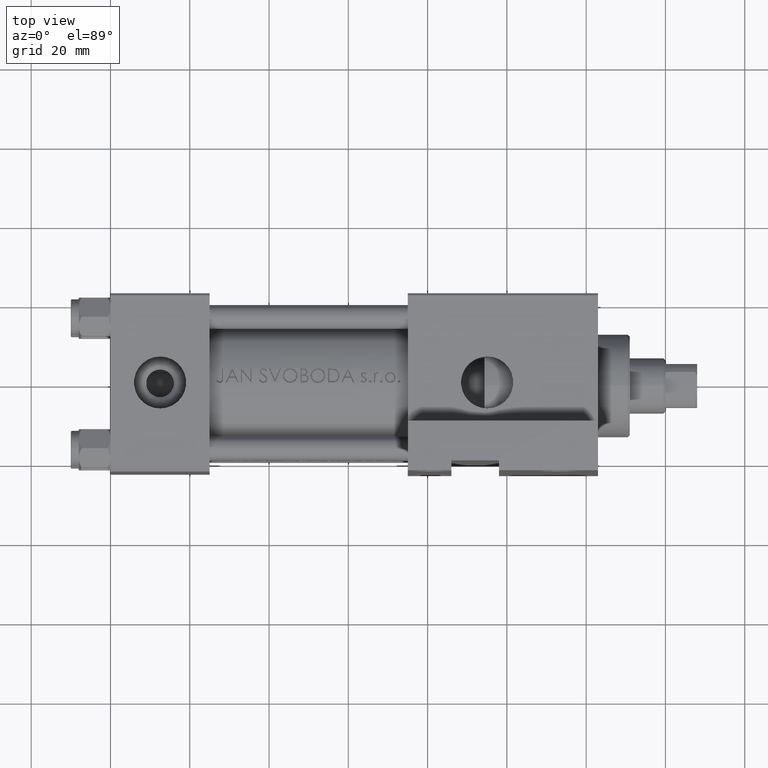
[diagram: clean part render]
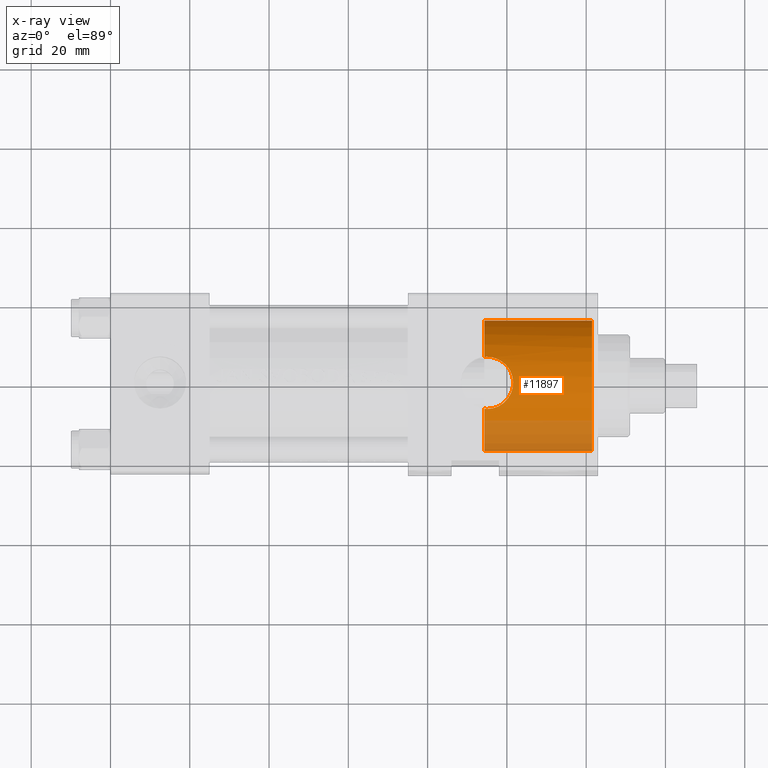
[diagram: x-ray — body ghosted, one internal face saturated and labeled with its STEP entity id]
A machine part, top view, then the same camera in x-ray: the body is ghosted and one INTERNAL B-rep face — a face not visible from any outside direction — is saturated and labeled: STEP entity #11897.
In plain terms, the highlighted cylindrical surface (partial cylindrical patch) has radius 16.5 mm, axis along (1, 0, 0).
Its self-contained STEP definition (entity closure, byte-faithful):
#61 = CARTESIAN_POINT ( 'NONE',  ( 95.00000000000001421, -15.33895693976614361, -6.580000000000001847 ) ) ;
#223 = EDGE_CURVE ( 'NONE', #13572, #2960, #27439, .T. ) ;
#235 = CARTESIAN_POINT ( 'NONE',  ( 94.76743154227646926, -15.33895693976614361, -6.580000000000001847 ) ) ;
#297 = CARTESIAN_POINT ( 'NONE',  ( 97.13848513234270854, -15.47127985552786811, -6.237636073092438060 ) ) ;
#2960 = VERTEX_POINT ( 'NONE', #36220 ) ;
#3669 = CARTESIAN_POINT ( 'NONE',  ( 101.5709677562896331, -16.50116693238018684, -0.4077177105366182608 ) ) ;
#3707 = AXIS2_PLACEMENT_3D ( 'NONE', #43122, #10062, #24773 ) ;
#3908 = CARTESIAN_POINT ( 'NONE',  ( 97.92778374562576005, -15.59286003707434176, -5.896700753237611892 ) ) ;
#4149 = CARTESIAN_POINT ( 'NONE',  ( 95.00000000000004263, -14.90381159301204583, 6.580000000000008953 ) ) ;
#4213 = DIRECTION ( 'NONE',  ( 1.000000000000000000, -0.000000000000000000, -0.000000000000000000 ) ) ;
#4372 = CARTESIAN_POINT ( 'NONE',  ( 99.35749147708605733, -15.89197804239858591, -4.948973207531823348 ) ) ;
#4440 = AXIS2_PLACEMENT_3D ( 'NONE', #23473, #27574, #9235 ) ;
#5342 = EDGE_CURVE ( 'NONE', #41602, #25103, #33946, .T. ) ;
#5819 = EDGE_LOOP ( 'NONE', ( #35603, #29239, #27670, #33240, #16023, #25145, #25515, #15714 ) ) ;
#7062 = CARTESIAN_POINT ( 'NONE',  ( 98.30013566022965676, -15.28950433861736968, 5.708499388656722573 ) ) ;
#7444 = CARTESIAN_POINT ( 'NONE',  ( 121.5000000000000142, 0.000000000000000000, -16.99999999999999645 ) ) ;
#7526 = CARTESIAN_POINT ( 'NONE',  ( 101.3588356637530268, -16.35197207035328759, 1.746060943800894938 ) ) ;
#7767 = CARTESIAN_POINT ( 'NONE',  ( 100.9152909999797316, -16.32739268020748113, -2.914679961596275515 ) ) ;
#8003 = CARTESIAN_POINT ( 'NONE',  ( 95.43706083123190353, -14.90381159301204406, 6.580000000000003624 ) ) ;
#8504 = CARTESIAN_POINT ( 'NONE',  ( 94.76740894158342599, -14.90381159301203695, 6.580000000000004512 ) ) ;
#9235 = DIRECTION ( 'NONE',  ( 0.000000000000000000, 0.000000000000000000, 1.000000000000000000 ) ) ;
#10062 = DIRECTION ( 'NONE',  ( 1.000000000000000000, 0.000000000000000000, 0.000000000000000000 ) ) ;
#11151 = CARTESIAN_POINT ( 'NONE',  ( 95.86560631136352129, -15.35602623177227244, -6.537463815344781715 ) ) ;
#11380 = CARTESIAN_POINT ( 'NONE',  ( 95.43411291541292485, -15.33895693976614361, -6.580000000000001847 ) ) ;
#11862 = CARTESIAN_POINT ( 'NONE',  ( 100.8954531384124778, -16.13952493269048460, 2.953520058509838009 ) ) ;
#11888 = CARTESIAN_POINT ( 'NONE',  ( 95.00000000000004263, -14.90381159301204583, 6.580000000000008953 ) ) ;
#11897 = ADVANCED_FACE ( 'NONE', ( #36751 ), #18174, .F. ) ;
#11978 = EDGE_CURVE ( 'NONE', #2960, #20697, #17901, .T. ) ;
#13452 = CARTESIAN_POINT ( 'NONE',  ( 95.00000000000001421, -15.33895693976614361, -6.580000000000001847 ) ) ;
#13572 = VERTEX_POINT ( 'NONE', #13452 ) ;
#14528 = CARTESIAN_POINT ( 'NONE',  ( 100.6923054650132059, -16.05392064770339289, 3.328442527785248295 ) ) ;
#14769 = CARTESIAN_POINT ( 'NONE',  ( 98.30796852157997989, -15.66216623791877716, -5.692129803036769964 ) ) ;
#14805 = CARTESIAN_POINT ( 'NONE',  ( 94.30000000000001137, 2.020667218593133100E-15, 16.00000000000000355 ) ) ;
#14954 = VERTEX_POINT ( 'NONE', #41731 ) ;
#15005 = CARTESIAN_POINT ( 'NONE',  ( 97.73356358058538262, -15.56042039305880031, -5.989176551187636477 ) ) ;
#15237 = CARTESIAN_POINT ( 'NONE',  ( 101.5326949847451061, -16.44614851479039075, 0.8985633279690183883 ) ) ;
#15714 = ORIENTED_EDGE ( 'NONE', *, *, #11978, .T. ) ;
#16023 = ORIENTED_EDGE ( 'NONE', *, *, #41264, .F. ) ;
#17001 = CARTESIAN_POINT ( 'NONE',  ( 94.30000000000001137, -15.35370509061271527, -6.542660009506837682 ) ) ;
#17359 = EDGE_CURVE ( 'NONE', #25103, #36775, #47610, .T. ) ;
#17901 = B_SPLINE_CURVE_WITH_KNOTS ( 'NONE', 3,
 ( #11888, #8504, #26592, #41312 ),
 .UNSPECIFIED., .F., .F.,
 ( 4, 4 ),
 ( 0.02150003536765269715, 0.02219197285507958431 ),
 .UNSPECIFIED. ) ;
#18147 = CARTESIAN_POINT ( 'NONE',  ( 99.95667384763370933, -16.04954766180734538, -4.332917015252684578 ) ) ;
#18174 = CYLINDRICAL_SURFACE ( 'NONE', #46005, 16.50000000000000000 ) ;
#18380 = CARTESIAN_POINT ( 'NONE',  ( 100.3567953874910472, -16.16208858154857708, -3.827128066706360965 ) ) ;
#18558 = CARTESIAN_POINT ( 'NONE',  ( 94.53410693024947875, -15.34384745132401129, -6.567707138799283584 ) ) ;
#18615 = CARTESIAN_POINT ( 'NONE',  ( 99.81133935170181815, -16.01015148505542740, -4.493698987271225853 ) ) ;
#19707 = DIRECTION ( 'NONE',  ( 1.000000000000000000, -0.000000000000000000, -0.000000000000000000 ) ) ;
#20697 = VERTEX_POINT ( 'NONE', #39258 ) ;
#21487 = B_SPLINE_CURVE_WITH_KNOTS ( 'NONE', 3,
 ( #22416, #18558, #235, #21709 ),
 .UNSPECIFIED., .F., .F.,
 ( 4, 4 ),
 ( 0.000000000000000000, 0.0006965685122027203986 ),
 .UNSPECIFIED. ) ;
#21709 = CARTESIAN_POINT ( 'NONE',  ( 95.00000000000001421, -15.33895693976614361, -6.580000000000001847 ) ) ;
#22057 = CARTESIAN_POINT ( 'NONE',  ( 121.5000000000000142, 2.020667218593133100E-15, 16.00000000000000355 ) ) ;
#22240 = CARTESIAN_POINT ( 'NONE',  ( 98.49403093643670104, -15.69908748261051734, -5.579806515649046617 ) ) ;
#22416 = CARTESIAN_POINT ( 'NONE',  ( 94.30000000000001137, -15.35370509061271527, -6.542660009506837682 ) ) ;
#22475 = CARTESIAN_POINT ( 'NONE',  ( 97.92589090463729917, -15.20539478107087916, 5.909229121773031501 ) ) ;
#22709 = CARTESIAN_POINT ( 'NONE',  ( 101.2380364384482760, -16.42309107580809879, -2.104813929365256353 ) ) ;
#22842 = CARTESIAN_POINT ( 'NONE',  ( 94.30000000000001137, 2.020667218593133100E-15, 16.00000000000000355 ) ) ;
#23473 = CARTESIAN_POINT ( 'NONE',  ( 121.5000000000000142, 0.000000000000000000, -0.4999999999999967804 ) ) ;
#24773 = DIRECTION ( 'NONE',  ( 0.000000000000000000, 0.000000000000000000, -1.000000000000000000 ) ) ;
#25103 = VERTEX_POINT ( 'NONE', #22057 ) ;
#25145 = ORIENTED_EDGE ( 'NONE', *, *, #32774, .T. ) ;
#25173 = CARTESIAN_POINT ( 'NONE',  ( 94.30000000000001137, 0.000000000000000000, -0.4999999999999967804 ) ) ;
#25515 = ORIENTED_EDGE ( 'NONE', *, *, #223, .T. ) ;
#25853 = CARTESIAN_POINT ( 'NONE',  ( 100.2294062955909197, -16.12552788553618299, -3.999511881282010073 ) ) ;
#25879 = DIRECTION ( 'NONE',  ( 0.000000000000000000, 0.000000000000000000, -1.000000000000000000 ) ) ;
#26091 = CARTESIAN_POINT ( 'NONE',  ( 101.2284342886651558, -16.28834046731283181, 2.164775913349310077 ) ) ;
#26328 = CARTESIAN_POINT ( 'NONE',  ( 96.72328628704786979, -15.42257739805874017, -6.365374442724283099 ) ) ;
#26592 = CARTESIAN_POINT ( 'NONE',  ( 94.53264108108572827, -14.90974480628696952, 6.567550307416768263 ) ) ;
#27439 = B_SPLINE_CURVE_WITH_KNOTS ( 'NONE', 3,
 ( #61, #11380, #11151, #26328, #297, #15005, #3908, #14769, #22240, #29480, #4372, #18615, #18147, #25853, #18380, #44211, #7767, #32862, #22709, #37429, #40579, #29712, #33339, #3669, #36964, #47584, #15237, #7526, #26091, #11862, #14528, #29948, #44443, #40814, #40109, #29247, #41053, #7062, #22475, #40346, #37202, #43977, #8003, #4149 ),
 .UNSPECIFIED., .F., .F.,
 ( 4, 2, 2, 2, 2, 2, 2, 2, 2, 2, 2, 2, 2, 2, 2, 2, 2, 2, 2, 2, 2, 4 ),
 ( 0.0006965685122027203986, 0.001996785190668331871, 0.003297001869133943559, 0.003947110208366748536, 0.004597218547599553513, 0.005897435226065166937, 0.006547543565297973649, 0.007197651904530778626, 0.008497868582996411999, 0.009147976922229229119, 0.009798085261462042769, 0.01044819360069485815, 0.01109830193992767354, 0.01239851861839330431, 0.01369873529685893161, 0.01499895197532456238, 0.01629916865379019142, 0.01694927699302300333, 0.01759938533225581872, 0.01889960201072144255, 0.02019981868918706985, 0.02150003536765269715 ),
 .UNSPECIFIED. ) ;
#27574 = DIRECTION ( 'NONE',  ( 1.000000000000000000, 0.000000000000000000, 0.000000000000000000 ) ) ;
#27666 = EDGE_CURVE ( 'NONE', #41602, #20697, #40197, .T. ) ;
#27670 = ORIENTED_EDGE ( 'NONE', *, *, #17359, .T. ) ;
#28712 = VECTOR ( 'NONE', #19707, 1000.000000000000000 ) ;
#28971 = DIRECTION ( 'NONE',  ( 1.000000000000000000, 0.000000000000000000, 0.000000000000000000 ) ) ;
#29239 = ORIENTED_EDGE ( 'NONE', *, *, #5342, .T. ) ;
#29247 = CARTESIAN_POINT ( 'NONE',  ( 99.00441944774540559, -15.47541940897811052, 5.225555808626246801 ) ) ;
#29480 = CARTESIAN_POINT ( 'NONE',  ( 99.02847767405266666, -15.81237954518120681, -5.220358165594040756 ) ) ;
#29712 = CARTESIAN_POINT ( 'NONE',  ( 101.4983281949435394, -16.49200114892362734, -1.055870233478336750 ) ) ;
#29948 = CARTESIAN_POINT ( 'NONE',  ( 100.2113291612782859, -15.86733303061777001, 4.040163306179451297 ) ) ;
#32774 = EDGE_CURVE ( 'NONE', #42244, #13572, #21487, .T. ) ;
#32862 = CARTESIAN_POINT ( 'NONE',  ( 101.1646761068264908, -16.40157007731483318, -2.310968459578449874 ) ) ;
#33240 = ORIENTED_EDGE ( 'NONE', *, *, #34465, .F. ) ;
#33339 = CARTESIAN_POINT ( 'NONE',  ( 101.5296148987571740, -16.49789263875700485, -0.8414156283381424295 ) ) ;
#33946 = LINE ( 'NONE', #22842, #28712 ) ;
#34110 = LINE ( 'NONE', #37272, #37992 ) ;
#34465 = EDGE_CURVE ( 'NONE', #14954, #36775, #34110, .T. ) ;
#35603 = ORIENTED_EDGE ( 'NONE', *, *, #27666, .F. ) ;
#36220 = CARTESIAN_POINT ( 'NONE',  ( 95.00000000000004263, -14.90381159301204583, 6.580000000000008953 ) ) ;
#36751 = FACE_OUTER_BOUND ( 'NONE', #5819, .T. ) ;
#36775 = VERTEX_POINT ( 'NONE', #7444 ) ;
#36964 = CARTESIAN_POINT ( 'NONE',  ( 101.5809669525391286, -16.49848120805964058, -0.1871076695943843793 ) ) ;
#37202 = CARTESIAN_POINT ( 'NONE',  ( 96.71439789280182708, -15.00324899027945413, 6.367404972463834412 ) ) ;
#37272 = CARTESIAN_POINT ( 'NONE',  ( 94.30000000000001137, 0.000000000000000000, -16.99999999999999645 ) ) ;
#37429 = CARTESIAN_POINT ( 'NONE',  ( 101.3629836567160822, -16.45835575231208026, -1.689905106513930111 ) ) ;
#37992 = VECTOR ( 'NONE', #4213, 1000.000000000000000 ) ;
#39258 = CARTESIAN_POINT ( 'NONE',  ( 94.30000000000001137, -14.92149255237200300, 6.542660009506839458 ) ) ;
#40109 = CARTESIAN_POINT ( 'NONE',  ( 99.33413285564040507, -15.57266778701109899, 4.955512184649311536 ) ) ;
#40197 = CIRCLE ( 'NONE', #46368, 16.50000000000000000 ) ;
#40346 = CARTESIAN_POINT ( 'NONE',  ( 97.13520237018700243, -15.06229937542716613, 6.238648670809852526 ) ) ;
#40579 = CARTESIAN_POINT ( 'NONE',  ( 101.4150129121088924, -16.47223324460452432, -1.480115068709090487 ) ) ;
#40814 = CARTESIAN_POINT ( 'NONE',  ( 99.49133867636233219, -15.62185234982736937, 4.813414449261098405 ) ) ;
#41053 = CARTESIAN_POINT ( 'NONE',  ( 98.83150468028263447, -15.42728545299678444, 5.353628400115725938 ) ) ;
#41264 = EDGE_CURVE ( 'NONE', #42244, #14954, #44563, .T. ) ;
#41312 = CARTESIAN_POINT ( 'NONE',  ( 94.30000000000001137, -14.92149255237200300, 6.542660009506839458 ) ) ;
#41602 = VERTEX_POINT ( 'NONE', #14805 ) ;
#41731 = CARTESIAN_POINT ( 'NONE',  ( 94.30000000000001137, 0.000000000000000000, -16.99999999999999645 ) ) ;
#42244 = VERTEX_POINT ( 'NONE', #17001 ) ;
#43122 = CARTESIAN_POINT ( 'NONE',  ( 94.30000000000001137, 0.000000000000000000, -0.4999999999999967804 ) ) ;
#43466 = DIRECTION ( 'NONE',  ( 0.000000000000000000, 0.000000000000000000, -1.000000000000000000 ) ) ;
#43977 = CARTESIAN_POINT ( 'NONE',  ( 95.86722621433905545, -14.92450725701553793, 6.536889544069380165 ) ) ;
#44211 = CARTESIAN_POINT ( 'NONE',  ( 100.7127167590448948, -16.26592437390081969, -3.293073257702374246 ) ) ;
#44243 = DIRECTION ( 'NONE',  ( 1.000000000000000000, -0.000000000000000000, -0.000000000000000000 ) ) ;
#44443 = CARTESIAN_POINT ( 'NONE',  ( 99.94085831556297705, -15.76925504840587600, 4.366124845913783581 ) ) ;
#44563 = CIRCLE ( 'NONE', #3707, 16.50000000000000000 ) ;
#46005 = AXIS2_PLACEMENT_3D ( 'NONE', #25173, #44243, #25879 ) ;
#46368 = AXIS2_PLACEMENT_3D ( 'NONE', #47541, #28971, #43466 ) ;
#47541 = CARTESIAN_POINT ( 'NONE',  ( 94.30000000000001137, 0.000000000000000000, -0.4999999999999967804 ) ) ;
#47584 = CARTESIAN_POINT ( 'NONE',  ( 101.5778417032764054, -16.47736198929498386, 0.4683372378626033394 ) ) ;
#47610 = CIRCLE ( 'NONE', #4440, 16.50000000000000000 ) ;